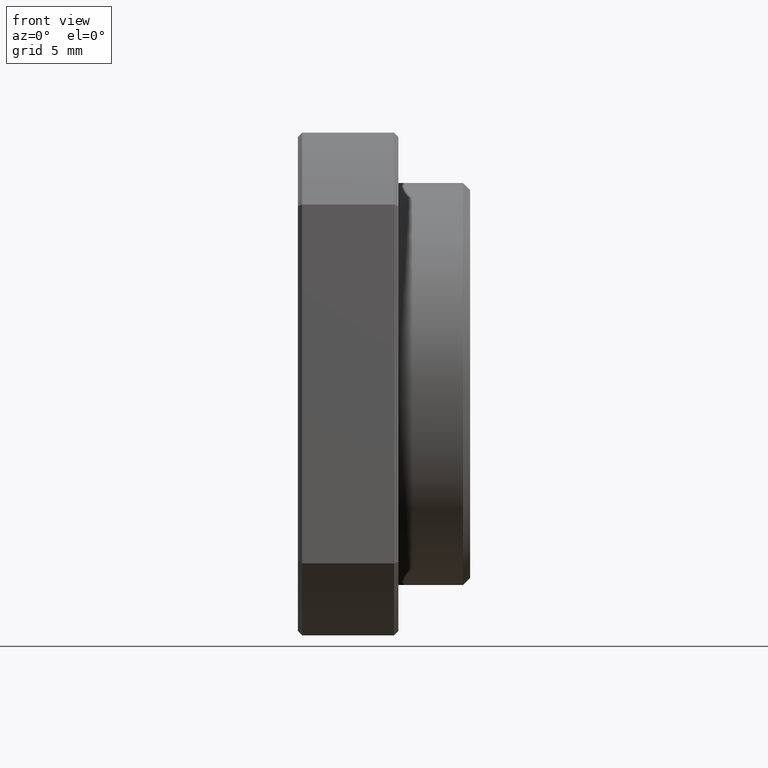
[diagram: clean part render]
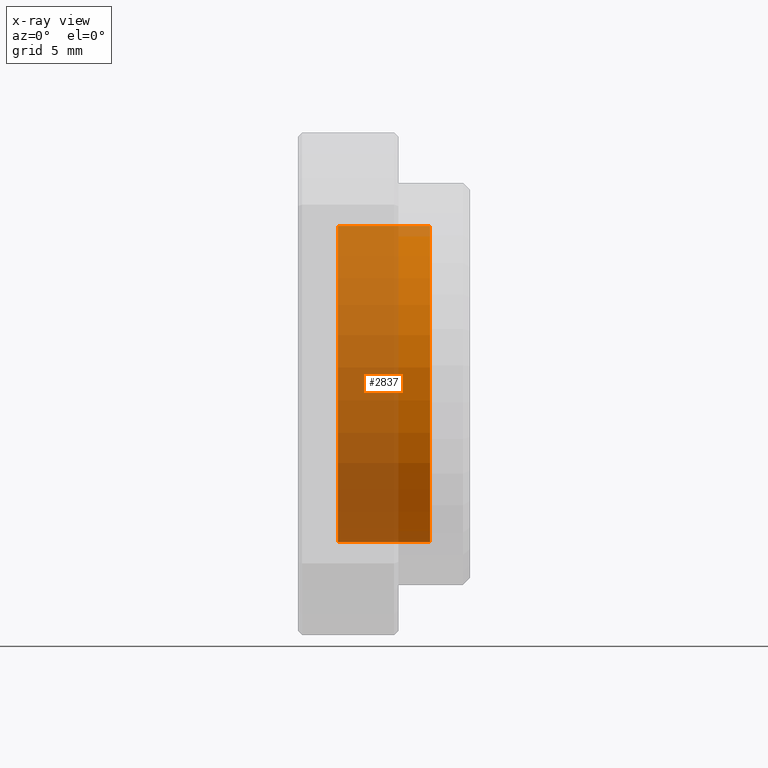
[diagram: x-ray — body ghosted, one internal face saturated and labeled with its STEP entity id]
A machine part, front view, then the same camera in x-ray: the body is ghosted and one INTERNAL B-rep face — a face not visible from any outside direction — is saturated and labeled: STEP entity #2837.
In plain terms, the highlighted cylindrical surface (partial cylindrical patch) has radius 11 mm, axis along (-1, -0, -0).
Its self-contained STEP definition (entity closure, byte-faithful):
#75 = EDGE_CURVE ( 'NONE', #6139, #6417, #1999, .T. ) ;
#155 = EDGE_CURVE ( 'NONE', #2892, #1390, #1881, .T. ) ;
#203 = DIRECTION ( 'NONE',  ( 0.0000000000000000000, 0.0000000000000000000, 1.000000000000000000 ) ) ;
#614 = DIRECTION ( 'NONE',  ( -1.000000000000000000, -0.0000000000000000000, -0.0000000000000000000 ) ) ;
#631 = ORIENTED_EDGE ( 'NONE', *, *, #75, .F. ) ;
#644 = ORIENTED_EDGE ( 'NONE', *, *, #4402, .T. ) ;
#649 = ORIENTED_EDGE ( 'NONE', *, *, #155, .T. ) ;
#674 = ORIENTED_EDGE ( 'NONE', *, *, #4208, .T. ) ;
#1390 = VERTEX_POINT ( 'NONE', #1407 ) ;
#1407 = CARTESIAN_POINT ( 'NONE',  ( 2.799999999999998500, 0.0000000000000000000, 11.00000000000000000 ) ) ;
#1881 = LINE ( 'NONE', #3896, #1883 ) ;
#1883 = VECTOR ( 'NONE', #614, 1000.000000000000000 ) ;
#1959 = VECTOR ( 'NONE', #5716, 1000.000000000000000 ) ;
#1980 = CARTESIAN_POINT ( 'NONE',  ( -13.58001605136436600, 1.347111479062088400E-015, -11.00000000000000000 ) ) ;
#1999 = LINE ( 'NONE', #1980, #1959 ) ;
#2032 = DIRECTION ( 'NONE',  ( -1.000000000000000000, -0.0000000000000000000, -0.0000000000000000000 ) ) ;
#2076 = CARTESIAN_POINT ( 'NONE',  ( 9.199999999999994000, 0.0000000000000000000, 0.0000000000000000000 ) ) ;
#2092 = DIRECTION ( 'NONE',  ( 0.0000000000000000000, 0.0000000000000000000, 1.000000000000000000 ) ) ;
#2544 = CARTESIAN_POINT ( 'NONE',  ( -13.58001605136436600, 0.0000000000000000000, 0.0000000000000000000 ) ) ;
#2554 = DIRECTION ( 'NONE',  ( -1.000000000000000000, -0.0000000000000000000, -0.0000000000000000000 ) ) ;
#2615 = CARTESIAN_POINT ( 'NONE',  ( 2.799999999999998500, 1.347111479062088400E-015, -11.00000000000000000 ) ) ;
#2682 = DIRECTION ( 'NONE',  ( 1.000000000000000000, 0.0000000000000000000, 0.0000000000000000000 ) ) ;
#2748 = CARTESIAN_POINT ( 'NONE',  ( 2.799999999999998500, 0.0000000000000000000, 0.0000000000000000000 ) ) ;
#2749 = DIRECTION ( 'NONE',  ( 0.0000000000000000000, 0.0000000000000000000, 1.000000000000000000 ) ) ;
#2837 = ADVANCED_FACE ( 'NONE', ( #3729 ), #3703, .T. ) ;
#2892 = VERTEX_POINT ( 'NONE', #6393 ) ;
#3023 = CIRCLE ( 'NONE', #4699, 11.00000000000000000 ) ;
#3125 = CIRCLE ( 'NONE', #5366, 11.00000000000000000 ) ;
#3703 = CYLINDRICAL_SURFACE ( 'NONE', #5525, 11.00000000000000000 ) ;
#3729 = FACE_OUTER_BOUND ( 'NONE', #4841, .T. ) ;
#3896 = CARTESIAN_POINT ( 'NONE',  ( -13.58001605136436600, 0.0000000000000000000, 11.00000000000000000 ) ) ;
#4208 = EDGE_CURVE ( 'NONE', #1390, #6417, #3125, .T. ) ;
#4402 = EDGE_CURVE ( 'NONE', #6139, #2892, #3023, .T. ) ;
#4548 = CARTESIAN_POINT ( 'NONE',  ( 9.199999999999994000, 1.347111479062088400E-015, -11.00000000000000000 ) ) ;
#4699 = AXIS2_PLACEMENT_3D ( 'NONE', #2076, #2032, #2092 ) ;
#4841 = EDGE_LOOP ( 'NONE', ( #631, #644, #649, #674 ) ) ;
#5366 = AXIS2_PLACEMENT_3D ( 'NONE', #2748, #2682, #2749 ) ;
#5525 = AXIS2_PLACEMENT_3D ( 'NONE', #2544, #2554, #203 ) ;
#5716 = DIRECTION ( 'NONE',  ( -1.000000000000000000, -0.0000000000000000000, -0.0000000000000000000 ) ) ;
#6139 = VERTEX_POINT ( 'NONE', #4548 ) ;
#6393 = CARTESIAN_POINT ( 'NONE',  ( 9.199999999999994000, 0.0000000000000000000, 11.00000000000000000 ) ) ;
#6417 = VERTEX_POINT ( 'NONE', #2615 ) ;